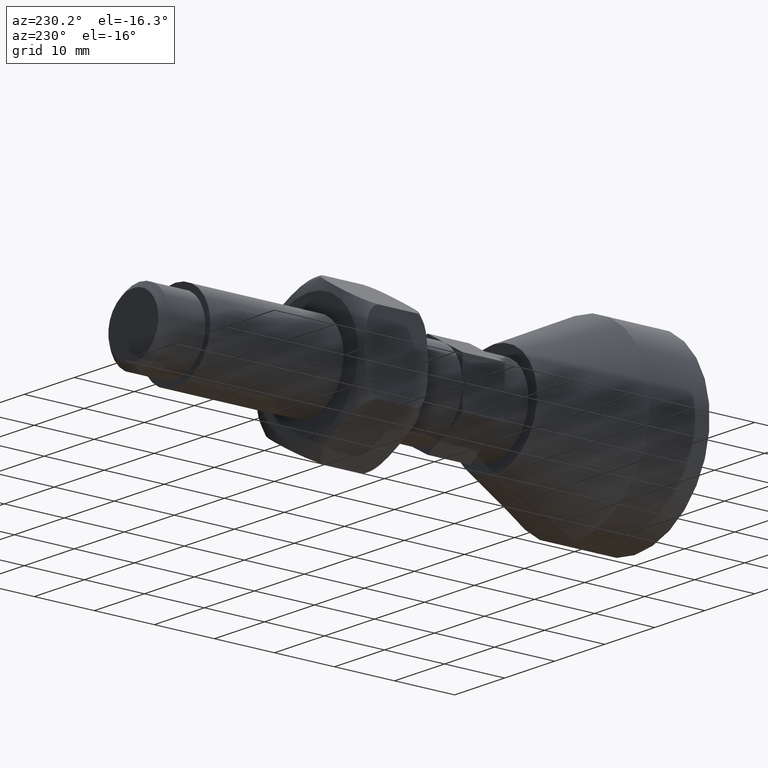
[diagram: clean part render]
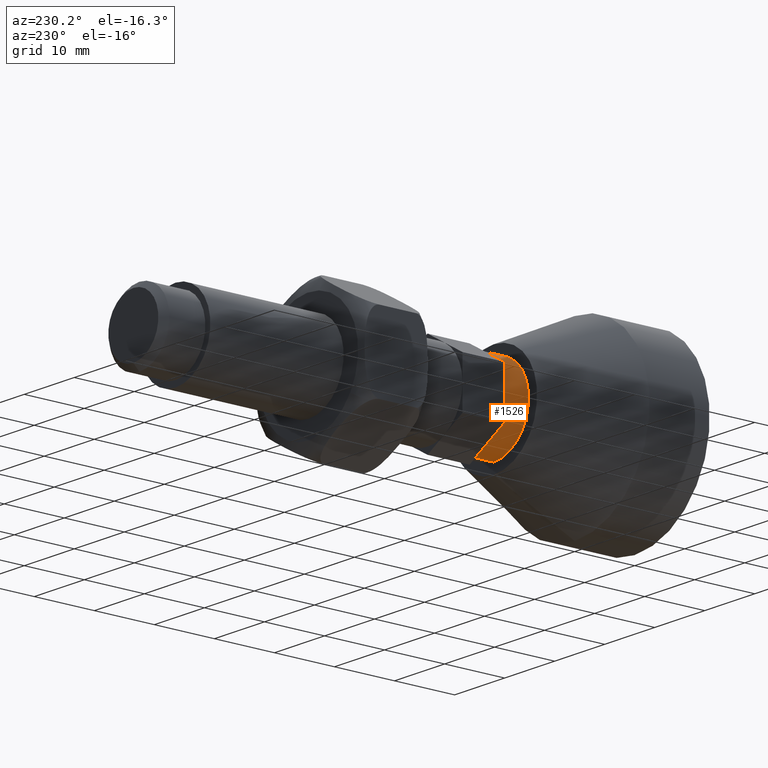
[diagram: same view with one face highlighted and labeled with its STEP entity id]
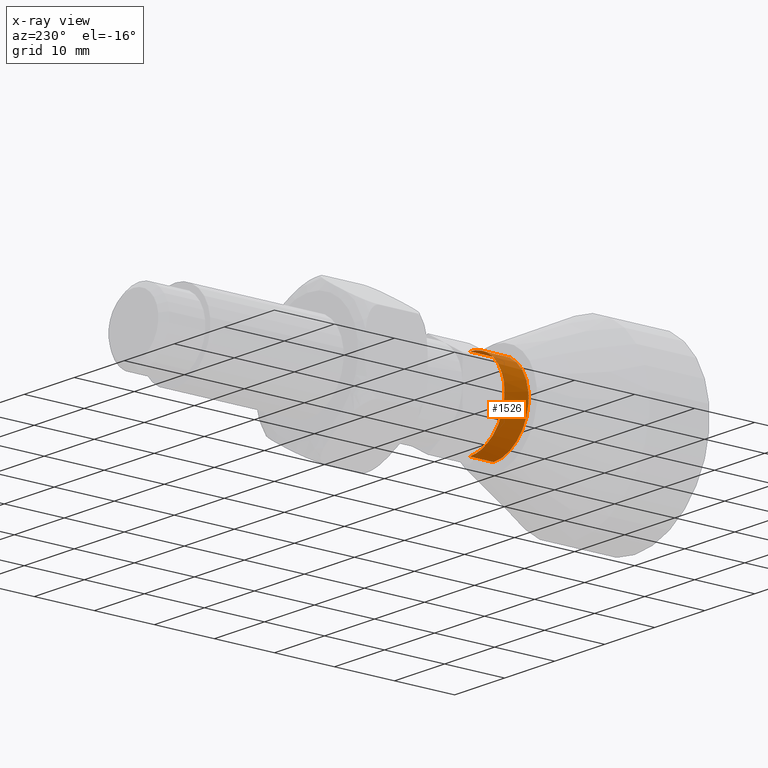
[diagram: x-ray of the same camera — body ghosted, the highlighted face saturated]
A machine part, auxiliary view. The second image highlights one B-rep face of the part: STEP entity #1526.
The next image is the same camera in x-ray: the body ghosted, the highlighted face saturated — about 0% of this face is hidden behind the body in this view.
In plain terms, the highlighted cylindrical surface (partial cylindrical patch) has radius 7 mm, axis along (-0, -1, -0).
Its self-contained STEP definition (entity closure, byte-faithful):
#102 = LINE ( 'NONE', #1292, #104 ) ;
#104 = VECTOR ( 'NONE', #1242, 1000.000000000000000 ) ;
#206 = EDGE_LOOP ( 'NONE', ( #994, #992, #1027, #225, #221, #220, #217 ) ) ;
#217 = ORIENTED_EDGE ( 'NONE', *, *, #375, .T. ) ;
#220 = ORIENTED_EDGE ( 'NONE', *, *, #439, .T. ) ;
#221 = ORIENTED_EDGE ( 'NONE', *, *, #348, .T. ) ;
#225 = ORIENTED_EDGE ( 'NONE', *, *, #362, .T. ) ;
#236 = CIRCLE ( 'NONE', #1130, 7.000000000000000000 ) ;
#245 = CIRCLE ( 'NONE', #1128, 7.000000000000000000 ) ;
#267 = CIRCLE ( 'NONE', #1126, 7.000000000000000000 ) ;
#270 = CIRCLE ( 'NONE', #1124, 7.000000000000000000 ) ;
#287 = FACE_OUTER_BOUND ( 'NONE', #206, .T. ) ;
#288 = CYLINDRICAL_SURFACE ( 'NONE', #1117, 7.000000000000000000 ) ;
#310 = CIRCLE ( 'NONE', #1133, 7.000000000000000000 ) ;
#348 = EDGE_CURVE ( 'NONE', #1659, #1626, #310, .T. ) ;
#357 = EDGE_CURVE ( 'NONE', #1575, #1583, #236, .T. ) ;
#362 = EDGE_CURVE ( 'NONE', #1745, #1659, #245, .T. ) ;
#375 = EDGE_CURVE ( 'NONE', #1692, #1756, #267, .T. ) ;
#377 = EDGE_CURVE ( 'NONE', #1583, #1745, #270, .T. ) ;
#418 = DIRECTION ( 'NONE',  ( 0.0000000000000000000, 1.000000000000000000, 0.0000000000000000000 ) ) ;
#419 = CARTESIAN_POINT ( 'NONE',  ( 0.0000000000000000000, 23.50000000000000000, 0.0000000000000000000 ) ) ;
#420 = DIRECTION ( 'NONE',  ( 0.0000000000000000000, 0.0000000000000000000, 1.000000000000000000 ) ) ;
#424 = DIRECTION ( 'NONE',  ( 0.0000000000000000000, -1.000000000000000000, -0.0000000000000000000 ) ) ;
#425 = CARTESIAN_POINT ( 'NONE',  ( 0.0000000000000000000, 27.49999999999999600, 0.0000000000000000000 ) ) ;
#426 = DIRECTION ( 'NONE',  ( 0.0000000000000000000, 0.0000000000000000000, -1.000000000000000000 ) ) ;
#432 = DIRECTION ( 'NONE',  ( -0.0000000000000000000, -1.000000000000000000, -0.0000000000000000000 ) ) ;
#436 = CARTESIAN_POINT ( 'NONE',  ( 0.0000000000000000000, 83.49999999999998600, -7.000000000000000000 ) ) ;
#439 = EDGE_CURVE ( 'NONE', #1626, #1692, #514, .T. ) ;
#465 = EDGE_CURVE ( 'NONE', #1575, #1756, #102, .T. ) ;
#514 = LINE ( 'NONE', #436, #515 ) ;
#515 = VECTOR ( 'NONE', #432, 1000.000000000000000 ) ;
#544 = CARTESIAN_POINT ( 'NONE',  ( -3.500000000000001300, 27.49999999999999600, 6.062177826491073100 ) ) ;
#564 = CARTESIAN_POINT ( 'NONE',  ( 8.572527594031473200E-016, 23.50000000000000000, 7.000000000000000000 ) ) ;
#571 = CARTESIAN_POINT ( 'NONE',  ( -7.000000000000000000, 27.49999999999999600, 7.511572993685790200E-016 ) ) ;
#592 = CARTESIAN_POINT ( 'NONE',  ( 0.0000000000000000000, 23.50000000000000000, -7.000000000000000000 ) ) ;
#610 = CARTESIAN_POINT ( 'NONE',  ( 8.572527594031473200E-016, 27.49999999999999600, 7.000000000000000000 ) ) ;
#617 = CARTESIAN_POINT ( 'NONE',  ( -3.499999999999999600, 27.49999999999999600, -6.062177826491074000 ) ) ;
#626 = CARTESIAN_POINT ( 'NONE',  ( 0.0000000000000000000, 27.49999999999999600, -7.000000000000000000 ) ) ;
#992 = ORIENTED_EDGE ( 'NONE', *, *, #357, .T. ) ;
#994 = ORIENTED_EDGE ( 'NONE', *, *, #465, .F. ) ;
#1027 = ORIENTED_EDGE ( 'NONE', *, *, #377, .T. ) ;
#1117 = AXIS2_PLACEMENT_3D ( 'NONE', #1349, #1256, #1353 ) ;
#1124 = AXIS2_PLACEMENT_3D ( 'NONE', #425, #424, #426 ) ;
#1126 = AXIS2_PLACEMENT_3D ( 'NONE', #419, #418, #420 ) ;
#1128 = AXIS2_PLACEMENT_3D ( 'NONE', #1624, #1701, #1732 ) ;
#1130 = AXIS2_PLACEMENT_3D ( 'NONE', #1649, #1623, #1621 ) ;
#1133 = AXIS2_PLACEMENT_3D ( 'NONE', #1614, #1613, #1646 ) ;
#1242 = DIRECTION ( 'NONE',  ( -0.0000000000000000000, -1.000000000000000000, -0.0000000000000000000 ) ) ;
#1256 = DIRECTION ( 'NONE',  ( -0.0000000000000000000, -1.000000000000000000, -0.0000000000000000000 ) ) ;
#1292 = CARTESIAN_POINT ( 'NONE',  ( 8.572527594031473200E-016, 83.49999999999998600, 7.000000000000000000 ) ) ;
#1349 = CARTESIAN_POINT ( 'NONE',  ( 0.0000000000000000000, 83.49999999999998600, 0.0000000000000000000 ) ) ;
#1353 = DIRECTION ( 'NONE',  ( 0.0000000000000000000, 0.0000000000000000000, -1.000000000000000000 ) ) ;
#1526 = ADVANCED_FACE ( 'NONE', ( #287 ), #288, .T. ) ;
#1575 = VERTEX_POINT ( 'NONE', #610 ) ;
#1583 = VERTEX_POINT ( 'NONE', #544 ) ;
#1613 = DIRECTION ( 'NONE',  ( 0.0000000000000000000, -1.000000000000000000, -0.0000000000000000000 ) ) ;
#1614 = CARTESIAN_POINT ( 'NONE',  ( 0.0000000000000000000, 27.49999999999999600, 0.0000000000000000000 ) ) ;
#1621 = DIRECTION ( 'NONE',  ( 0.0000000000000000000, 0.0000000000000000000, -1.000000000000000000 ) ) ;
#1623 = DIRECTION ( 'NONE',  ( 0.0000000000000000000, -1.000000000000000000, -0.0000000000000000000 ) ) ;
#1624 = CARTESIAN_POINT ( 'NONE',  ( 0.0000000000000000000, 27.49999999999999600, 0.0000000000000000000 ) ) ;
#1626 = VERTEX_POINT ( 'NONE', #626 ) ;
#1646 = DIRECTION ( 'NONE',  ( 0.0000000000000000000, 0.0000000000000000000, -1.000000000000000000 ) ) ;
#1649 = CARTESIAN_POINT ( 'NONE',  ( 0.0000000000000000000, 27.49999999999999600, 0.0000000000000000000 ) ) ;
#1659 = VERTEX_POINT ( 'NONE', #617 ) ;
#1692 = VERTEX_POINT ( 'NONE', #592 ) ;
#1701 = DIRECTION ( 'NONE',  ( 0.0000000000000000000, -1.000000000000000000, -0.0000000000000000000 ) ) ;
#1732 = DIRECTION ( 'NONE',  ( 0.0000000000000000000, 0.0000000000000000000, -1.000000000000000000 ) ) ;
#1745 = VERTEX_POINT ( 'NONE', #571 ) ;
#1756 = VERTEX_POINT ( 'NONE', #564 ) ;